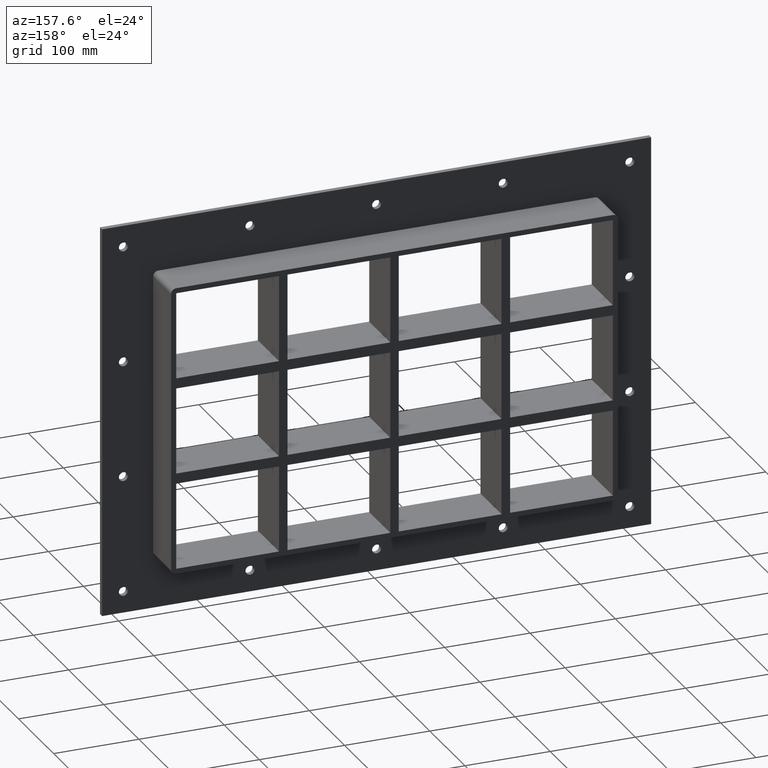
[diagram: clean part render]
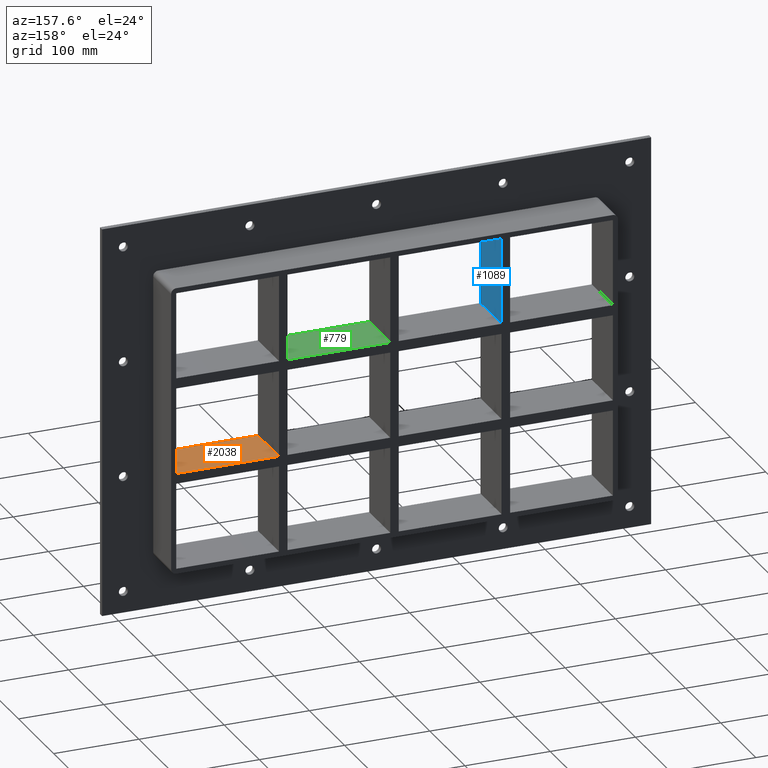
[diagram: same view with three faces highlighted in distinct colors, each labeled with its STEP entity id]
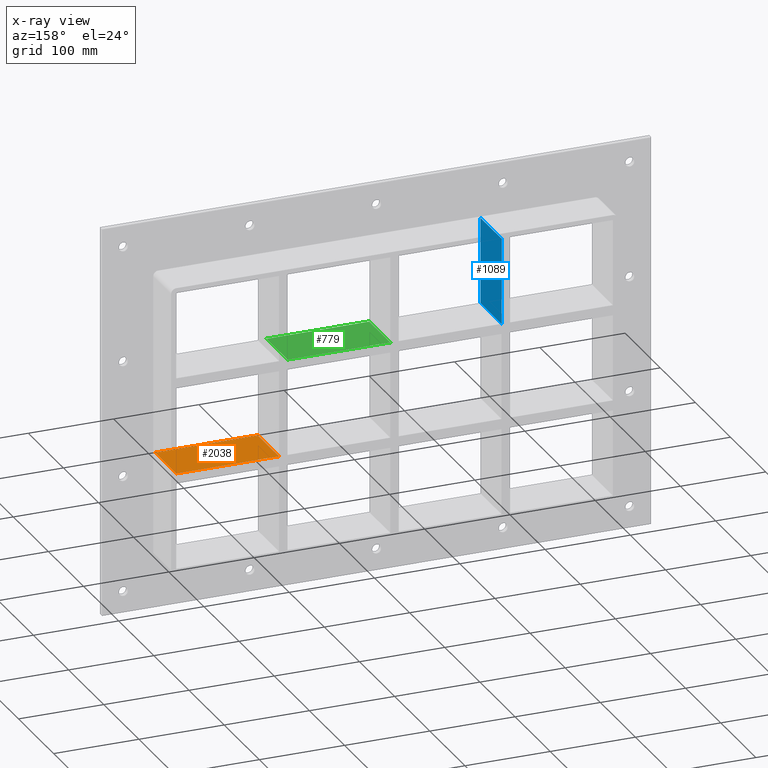
[diagram: x-ray of the same camera — body ghosted, the three highlighted faces saturated]
A machine part, auxiliary view with three faces highlighted in distinct colors.
The next image is the same camera in x-ray (body ghosted, the three faces saturated) — at least one of them is partly hidden behind the body in this view.
Their STEP definitions:

[orange] entity #2038 — the highlighted planar face has unit normal (0, 0, 1).
#817=CARTESIAN_POINT('',(256.00000000000023,57.0,-50.500000000000114));
#818=VERTEX_POINT('',#817);
#825=CARTESIAN_POINT('',(256.00000000000023,-3.0,-50.500000000000114));
#826=VERTEX_POINT('',#825);
#827=CARTESIAN_POINT('',(256.00000000000011,57.000000000000007,-50.500000000000114));
#828=DIRECTION('',(0.0,-1.0,0.0));
#829=VECTOR('',#828,60.000000000000007);
#830=LINE('',#827,#829);
#831=EDGE_CURVE('',#818,#826,#830,.T.);
#1217=CARTESIAN_POINT('',(135.50000000000728,57.0,-50.500000000000114));
#1218=VERTEX_POINT('',#1217);
#1225=CARTESIAN_POINT('',(135.50000000000728,57.0,-50.500000000000114));
#1226=DIRECTION('',(1.0,0.0,0.0));
#1227=VECTOR('',#1226,120.49999999999295);
#1228=LINE('',#1225,#1227);
#1229=EDGE_CURVE('',#1218,#818,#1228,.T.);
#1493=CARTESIAN_POINT('',(135.50000000000728,-3.0,-50.500000000000114));
#1494=VERTEX_POINT('',#1493);
#1501=CARTESIAN_POINT('',(135.50000000000728,57.0,-50.500000000000114));
#1502=DIRECTION('',(0.0,-1.0,0.0));
#1503=VECTOR('',#1502,60.0);
#1504=LINE('',#1501,#1503);
#1505=EDGE_CURVE('',#1218,#1494,#1504,.T.);
#1804=CARTESIAN_POINT('',(135.50000000000728,-3.0,-50.500000000000114));
#1805=DIRECTION('',(1.0,0.0,0.0));
#1806=VECTOR('',#1805,120.49999999999295);
#1807=LINE('',#1804,#1806);
#1808=EDGE_CURVE('',#1494,#826,#1807,.T.);
#2027=CARTESIAN_POINT('',(-256.00000000000045,-3.0,-50.500000000000114));
#2028=DIRECTION('',(0.0,0.0,1.0));
#2029=DIRECTION('',(1.0,0.0,0.0));
#2030=AXIS2_PLACEMENT_3D('',#2027,#2028,#2029);
#2031=PLANE('',#2030);
#2032=ORIENTED_EDGE('',*,*,#1505,.T.);
#2033=ORIENTED_EDGE('',*,*,#1808,.T.);
#2034=ORIENTED_EDGE('',*,*,#831,.F.);
#2035=ORIENTED_EDGE('',*,*,#1229,.F.);
#2036=EDGE_LOOP('',(#2032,#2033,#2034,#2035));
#2037=FACE_OUTER_BOUND('',#2036,.T.);
#2038=ADVANCED_FACE('',(#2037),#2031,.T.);

[blue] entity #1089 — the highlighted planar face has unit normal (1, 0, 0).
#715=CARTESIAN_POINT('',(-125.49999999999272,57.0,62.499999999999893));
#716=VERTEX_POINT('',#715);
#723=CARTESIAN_POINT('',(-125.49999999999272,-3.0,62.499999999999893));
#724=VERTEX_POINT('',#723);
#725=CARTESIAN_POINT('',(-125.49999999999272,-3.0,62.499999999999893));
#726=DIRECTION('',(0.0,1.0,0.0));
#727=VECTOR('',#726,60.0);
#728=LINE('',#725,#727);
#729=EDGE_CURVE('',#724,#716,#728,.T.);
#1059=CARTESIAN_POINT('',(-125.49999999999272,-3.0,163.49999999999997));
#1060=DIRECTION('',(1.0,0.0,0.0));
#1061=DIRECTION('',(0.0,0.0,-1.0));
#1062=AXIS2_PLACEMENT_3D('',#1059,#1060,#1061);
#1063=PLANE('',#1062);
#1064=ORIENTED_EDGE('',*,*,#729,.T.);
#1065=CARTESIAN_POINT('',(-125.49999999999272,57.0,163.49999999999997));
#1066=VERTEX_POINT('',#1065);
#1067=CARTESIAN_POINT('',(-125.49999999999272,57.0,163.49999999999997));
#1068=DIRECTION('',(0.0,0.0,-1.0));
#1069=VECTOR('',#1068,101.00000000000009);
#1070=LINE('',#1067,#1069);
#1071=EDGE_CURVE('',#1066,#716,#1070,.T.);
#1072=ORIENTED_EDGE('',*,*,#1071,.F.);
#1073=CARTESIAN_POINT('',(-125.49999999999272,-3.0,163.49999999999997));
#1074=VERTEX_POINT('',#1073);
#1075=CARTESIAN_POINT('',(-125.49999999999272,-3.0,163.5));
#1076=DIRECTION('',(0.0,1.0,0.0));
#1077=VECTOR('',#1076,60.000000000000007);
#1078=LINE('',#1075,#1077);
#1079=EDGE_CURVE('',#1074,#1066,#1078,.T.);
#1080=ORIENTED_EDGE('',*,*,#1079,.F.);
#1081=CARTESIAN_POINT('',(-125.49999999999272,-3.0,163.49999999999997));
#1082=DIRECTION('',(0.0,0.0,-1.0));
#1083=VECTOR('',#1082,101.00000000000009);
#1084=LINE('',#1081,#1083);
#1085=EDGE_CURVE('',#1074,#724,#1084,.T.);
#1086=ORIENTED_EDGE('',*,*,#1085,.T.);
#1087=EDGE_LOOP('',(#1064,#1072,#1080,#1086));
#1088=FACE_OUTER_BOUND('',#1087,.T.);
#1089=ADVANCED_FACE('',(#1088),#1063,.T.);

[green] entity #779 — the highlighted planar face has unit normal (0, 0, 1).
#740=CARTESIAN_POINT('',(-256.00000000000045,-3.0,62.499999999999893));
#741=DIRECTION('',(0.0,0.0,1.0));
#742=DIRECTION('',(1.0,0.0,0.0));
#743=AXIS2_PLACEMENT_3D('',#740,#741,#742);
#744=PLANE('',#743);
#745=CARTESIAN_POINT('',(125.49999999999791,57.0,62.499999999999893));
#746=VERTEX_POINT('',#745);
#747=CARTESIAN_POINT('',(125.49999999999791,-3.0,62.499999999999893));
#748=VERTEX_POINT('',#747);
#749=CARTESIAN_POINT('',(125.49999999999791,57.0,62.499999999999893));
#750=DIRECTION('',(0.0,-1.0,0.0));
#751=VECTOR('',#750,60.0);
#752=LINE('',#749,#751);
#753=EDGE_CURVE('',#746,#748,#752,.T.);
#754=ORIENTED_EDGE('',*,*,#753,.F.);
#755=CARTESIAN_POINT('',(5.000000000007283,57.0,62.499999999999893));
#756=VERTEX_POINT('',#755);
#757=CARTESIAN_POINT('',(5.000000000007276,57.0,62.499999999999893));
#758=DIRECTION('',(1.0,0.0,0.0));
#759=VECTOR('',#758,120.49999999999062);
#760=LINE('',#757,#759);
#761=EDGE_CURVE('',#756,#746,#760,.T.);
#762=ORIENTED_EDGE('',*,*,#761,.F.);
#763=CARTESIAN_POINT('',(5.000000000007283,-3.0,62.499999999999893));
#764=VERTEX_POINT('',#763);
#765=CARTESIAN_POINT('',(5.000000000007283,-3.0,62.499999999999893));
#766=DIRECTION('',(0.0,1.0,0.0));
#767=VECTOR('',#766,60.0);
#768=LINE('',#765,#767);
#769=EDGE_CURVE('',#764,#756,#768,.T.);
#770=ORIENTED_EDGE('',*,*,#769,.F.);
#771=CARTESIAN_POINT('',(5.000000000007276,-3.0,62.499999999999893));
#772=DIRECTION('',(1.0,0.0,0.0));
#773=VECTOR('',#772,120.49999999999062);
#774=LINE('',#771,#773);
#775=EDGE_CURVE('',#764,#748,#774,.T.);
#776=ORIENTED_EDGE('',*,*,#775,.T.);
#777=EDGE_LOOP('',(#754,#762,#770,#776));
#778=FACE_OUTER_BOUND('',#777,.T.);
#779=ADVANCED_FACE('',(#778),#744,.T.);